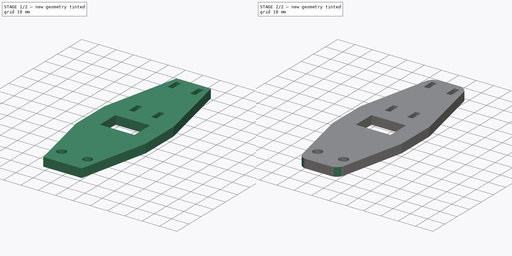
[diagram: build sequence overview — one tinted view per stage of 2, left to right]
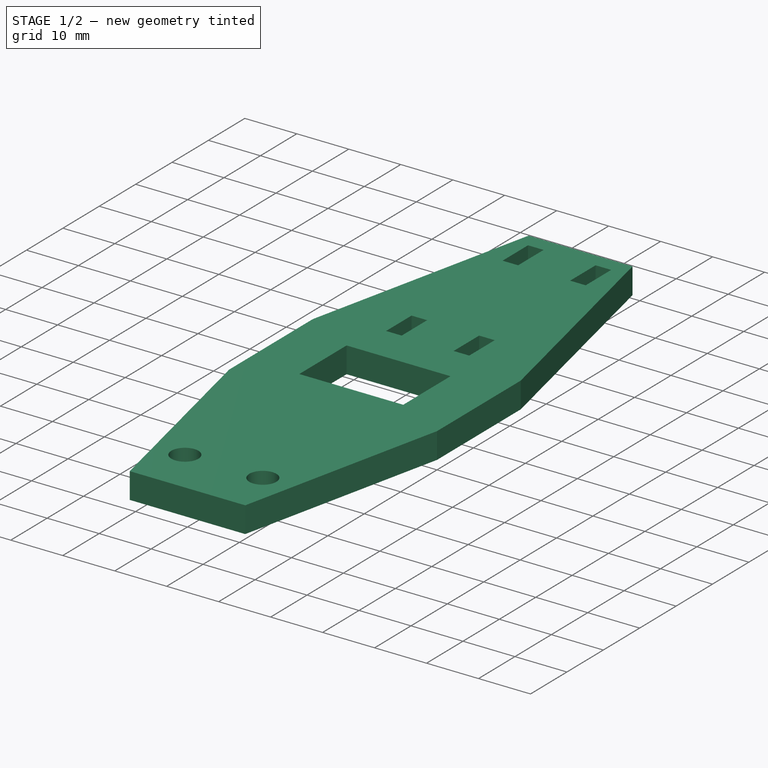
[diagram: stage 1 of 2 — iso view after this stage's code; geometry added in this stage tinted green]
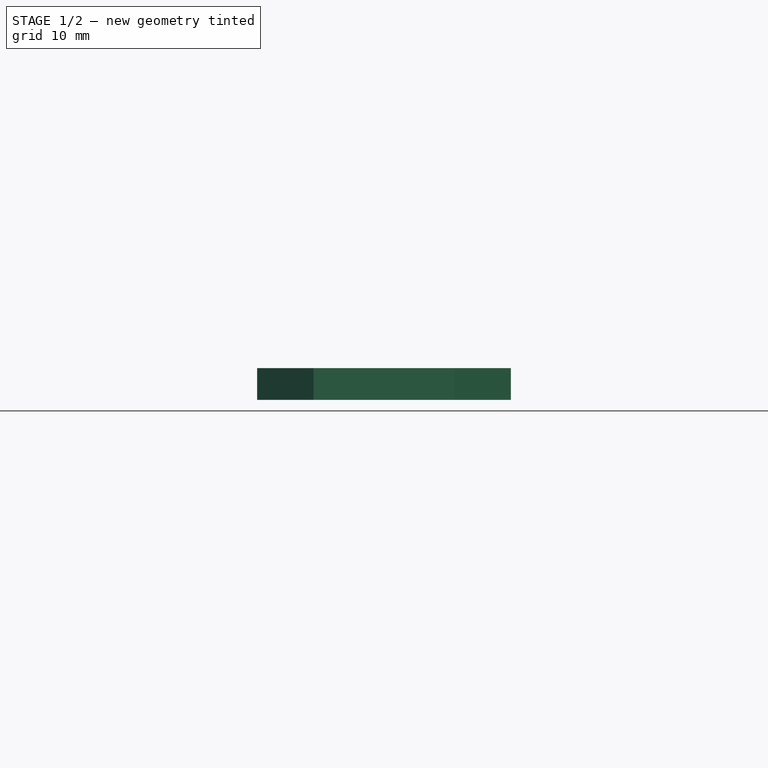
[diagram: stage 1 of 2 — front view after this stage's code; geometry added in this stage tinted green]
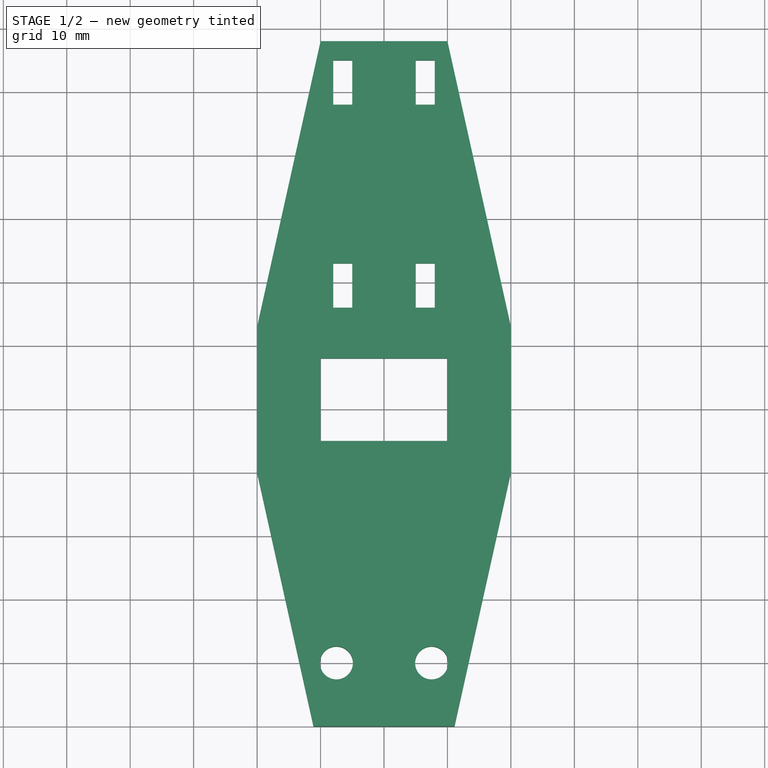
[diagram: stage 1 of 2 — top view after this stage's code; geometry added in this stage tinted green]
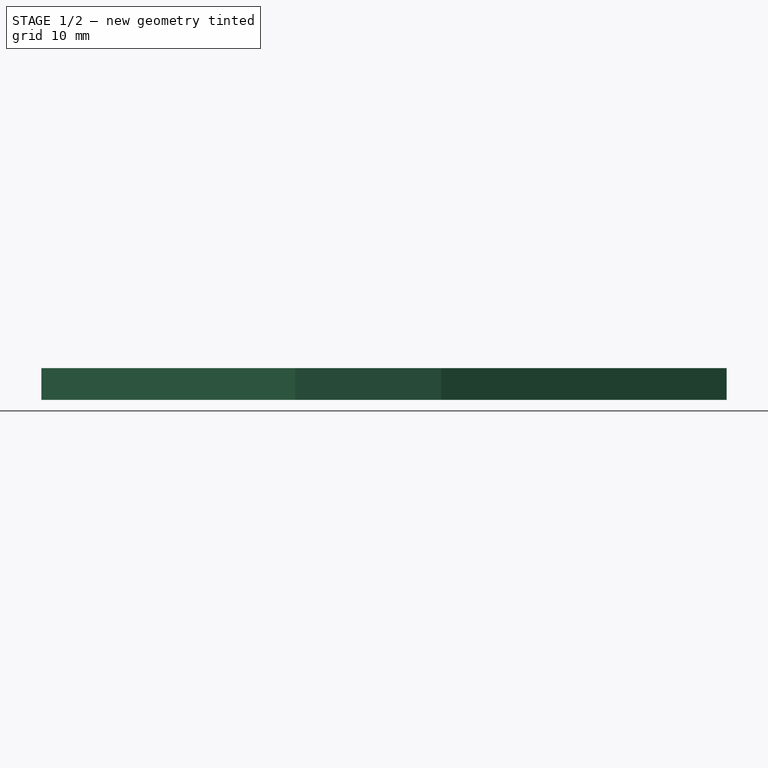
[diagram: stage 1 of 2 — right view after this stage's code; geometry added in this stage tinted green]
FCSTD DOCUMENT  (FreeCAD 0.19R24366 (Git))
Label: fixed-x-motor-cable-guide
License: All rights reserved
LicenseURL: http://en.wikipedia.org/wiki/All_rights_reserved
objects: Sketcher::SketchObject×1, PartDesign::Pad×1, PartDesign::Fillet×1, PartDesign::Plane×1, PartDesign::Body×1
note: 7 computed .brp shape members not serialized (recipe doc carries the construction recipe); baked Part::Feature solids carry a one-line shape summary decoded from their .brp

FEATURE [Sketcher::SketchObject] Sketch
  FullyConstrained = true
  MapMode = 5
  Support = -> [XY_Plane]
  sketch-geometry (33):
    g0: LineSegment StartX=-11.111 StartY=0 StartZ=0 EndX=11.111 EndY=0 EndZ=0
    g1: LineSegment StartX=20 StartY=40 StartZ=0 EndX=20 EndY=63 EndZ=0
    g2: LineSegment StartX=20 StartY=63 StartZ=0 EndX=-20 EndY=63 EndZ=0
    g3: LineSegment StartX=-20 StartY=63 StartZ=0 EndX=-20 EndY=40 EndZ=0
    g4: LineSegment StartX=-10 StartY=108 StartZ=0 EndX=10 EndY=108 EndZ=0
    g5: LineSegment StartX=-10 StartY=108 StartZ=0 EndX=-20 EndY=63 EndZ=0
    g6: LineSegment StartX=10 StartY=108 StartZ=0 EndX=20 EndY=63 EndZ=0
    g7: Circle CenterX=7.5 CenterY=10 CenterZ=0 NormalX=0 NormalY=0 NormalZ=1 AngleXU=0 Radius=2.6
    g8: Circle CenterX=-7.5 CenterY=10 CenterZ=0 NormalX=0 NormalY=0 NormalZ=1 AngleXU=0 Radius=2.6
    g9: LineSegment StartX=-8 StartY=105 StartZ=0 EndX=-5 EndY=105 EndZ=0
    g10: LineSegment StartX=-5 StartY=105 StartZ=0 EndX=-5 EndY=98 EndZ=0
    g11: LineSegment StartX=-5 StartY=98 StartZ=0 EndX=-8 EndY=98 EndZ=0
    g12: LineSegment StartX=-8 StartY=98 StartZ=0 EndX=-8 EndY=105 EndZ=0
    g13: LineSegment StartX=5 StartY=105 StartZ=0 EndX=8 EndY=105 EndZ=0
    g14: LineSegment StartX=8 StartY=105 StartZ=0 EndX=8 EndY=98 EndZ=0
    g15: LineSegment StartX=8 StartY=98 StartZ=0 EndX=5 EndY=98 EndZ=0
    g16: LineSegment StartX=5 StartY=98 StartZ=0 EndX=5 EndY=105 EndZ=0
    g17: LineSegment StartX=-10 StartY=58 StartZ=0 EndX=10 EndY=58 EndZ=0
    g18: LineSegment StartX=10 StartY=58 StartZ=0 EndX=10 EndY=45 EndZ=0
    g19: LineSegment StartX=10 StartY=45 StartZ=0 EndX=-10 EndY=45 EndZ=0
    g20: LineSegment StartX=-10 StartY=45 StartZ=0 EndX=-10 EndY=58 EndZ=0
    g21: LineSegment StartX=-8 StartY=73 StartZ=0 EndX=-5 EndY=73 EndZ=0
    g22: LineSegment StartX=-5 StartY=73 StartZ=0 EndX=-5 EndY=66 EndZ=0
    g23: LineSegment StartX=-5 StartY=66 StartZ=0 EndX=-8 EndY=66 EndZ=0
    g24: LineSegment StartX=-8 StartY=66 StartZ=0 EndX=-8 EndY=73 EndZ=0
    g25: LineSegment StartX=5 StartY=73 StartZ=0 EndX=8 EndY=73 EndZ=0
    g26: LineSegment StartX=8 StartY=73 StartZ=0 EndX=8 EndY=66 EndZ=0
    g27: LineSegment StartX=8 StartY=66 StartZ=0 EndX=5 EndY=66 EndZ=0
    g28: LineSegment StartX=5 StartY=66 StartZ=0 EndX=5 EndY=73 EndZ=0
    g29: LineSegment StartX=-20 StartY=40 StartZ=0 EndX=20 EndY=40 EndZ=0
    g30: LineSegment StartX=-20 StartY=40 StartZ=0 EndX=-11.111 EndY=0 EndZ=0
    g31: LineSegment StartX=11.111 StartY=0 StartZ=0 EndX=20 EndY=40 EndZ=0
    g32: LineSegment StartX=-11.111 StartY=0 StartZ=0 EndX=11.111 EndY=0 EndZ=0
  constraints (96):
    c: Coincident(g1,g2)
    c: Coincident(g2,g3)
    c: Horizontal(g0)
    c: Horizontal(g2)
    c: Vertical(g1)
    c: Vertical(g3)
    c: Horizontal(g4)
    c: DistanceX(g4,g4) = 20
    c: Coincident(g5,g4)
    c: Coincident(g5,g2)
    c: Coincident(g6,g4)
    c: Coincident(g6,g1)
    c: Diameter(g8) = 5.2
    c: Diameter(g7) = 5.2
    c: Coincident(g9,g10)
    c: Coincident(g10,g11)
    c: Coincident(g11,g12)
    c: Coincident(g12,g9)
    c: Horizontal(g9)
    c: Horizontal(g11)
    c: Vertical(g10)
    c: Vertical(g12)
    c: Coincident(g13,g14)
    c: Coincident(g14,g15)
    c: Coincident(g15,g16)
    c: Coincident(g16,g13)
    c: Horizontal(g13)
    c: Horizontal(g15)
    c: Vertical(g14)
    c: Vertical(g16)
    c: DistanceX(g11,g11) = 3
    c: DistanceX(g15,g15) = 3
    c: DistanceY(g12,g12) = 7
    c: DistanceY(g14,g14) = 7
    c: Coincident(g17,g18)
    c: Coincident(g18,g19)
    c: Coincident(g19,g20)
    c: Coincident(g20,g17)
    c: Horizontal(g17)
    c: Horizontal(g19)
    c: Vertical(g18)
    c: Vertical(g20)
    c: DistanceX(g19,g19) = 20
    c: DistanceX(g8,g7) = 15
    c: DistanceY(g8,g19) = 35
    c: DistanceY(g8,g17) = 48
    c: Coincident(g21,g22)
    c: Coincident(g22,g23)
    c: Coincident(g23,g24)
    c: Coincident(g24,g21)
    c: Horizontal(g21)
    c: Horizontal(g23)
    c: Vertical(g22)
    c: Vertical(g24)
    c: Coincident(g25,g26)
    c: Coincident(g26,g27)
    c: Coincident(g27,g28)
    c: Coincident(g28,g25)
    c: Horizontal(g25)
    c: Horizontal(g27)
    c: Vertical(g26)
    c: Vertical(g28)
    c: DistanceX(g23,g23) = 3
    c: DistanceX(g27,g27) = 3
    c: DistanceY(g22,g22) = 7
    c: DistanceY(g26,g26) = 7
    c: DistanceY(g17,g4) = 50
    c: DistanceY(g-1,g8) = 10
    c: DistanceY(g2,g21) = 10
    c: DistanceY(g1,g25) = 10
    c: DistanceX(g9,g13) = 10
    c: DistanceY(g13,g4) = 3
    c: DistanceY(g9,g4) = 3
    c: DistanceX(g17,g1) = 10
    c: DistanceX(g2,g4) = 10
    c: DistanceX(g21,g25) = 10
    c: DistanceX(g-1,g8) = 12.5
    c: DistanceX(g4,g9) = 2
    c: DistanceX(g2,g23) = 12
    c: Horizontal(g29)
    c: Coincident(g30,g29)
    c: Coincident(g31,g29)
    c: Equal(g31,g30)
    c: Angle(g5,g4) = 1.78947
    c: Angle(g0,g30) = 1.78947
    c: Coincident(g32,g30)
    c: Coincident(g32,g31)
    c: DistanceY(g17,g1) = 5
    c: DistanceY(g29,g18) = 5
    c: Coincident(g3,g29)
    c: Coincident(g1,g29)
    c: Coincident(g0,g31)
    c: Coincident(g0,g30)
    c: Equal(g6,g5)
    c: Symmetric(g0,g0,g-1)
    c: Symmetric(g8,g7,g-2)
FEATURE [PartDesign::Pad] Pad
  Direction = (1,1,1)
  Length = 5
  Length2 = 100
  Profile = -> Sketch
  Refine = true
  Type = 0
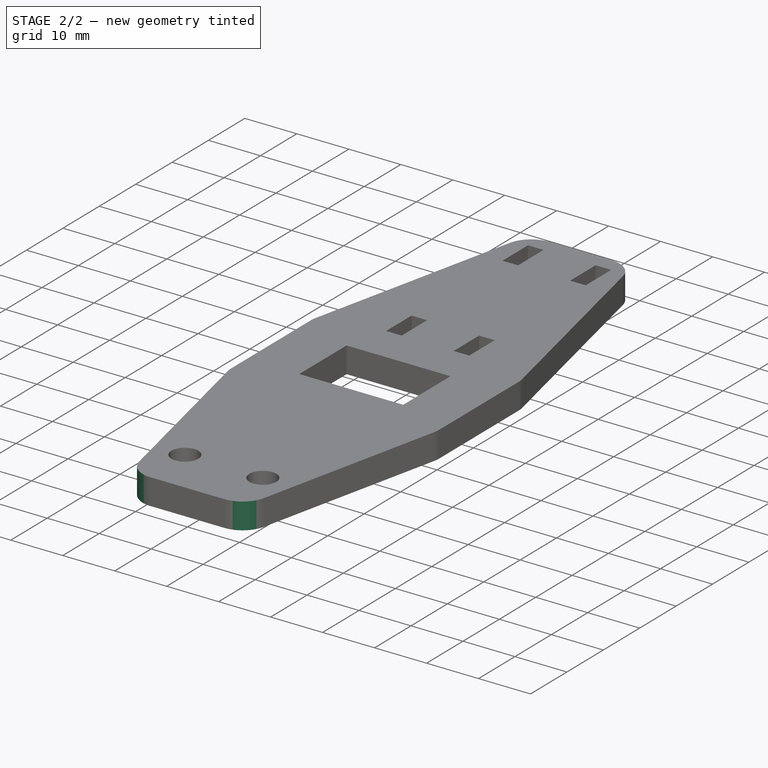
[diagram: stage 2 of 2 — iso view after this stage's code; geometry added in this stage tinted green]
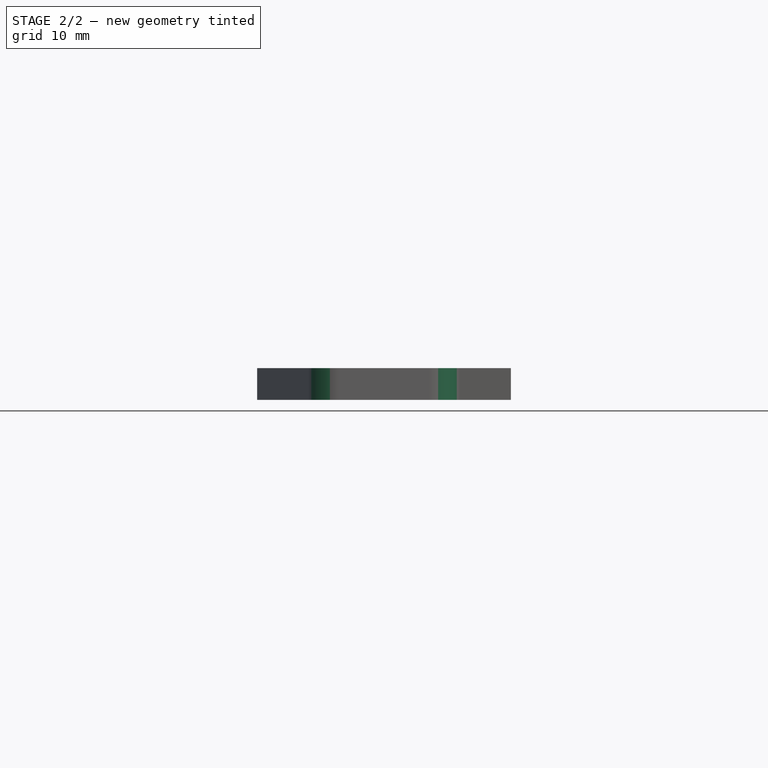
[diagram: stage 2 of 2 — front view after this stage's code; geometry added in this stage tinted green]
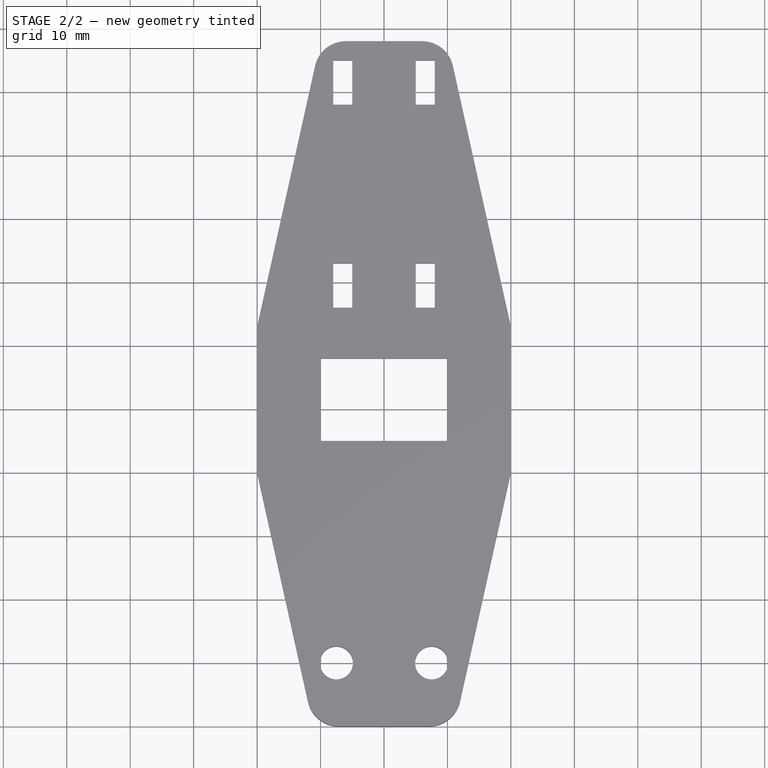
[diagram: stage 2 of 2 — top view after this stage's code; geometry added in this stage tinted green]
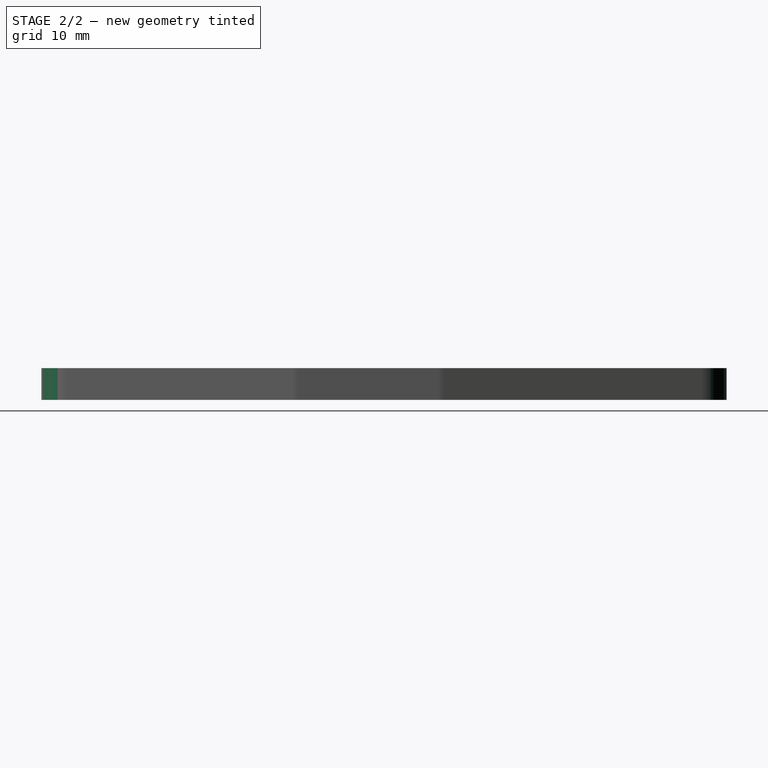
[diagram: stage 2 of 2 — right view after this stage's code; geometry added in this stage tinted green]
FEATURE [PartDesign::Fillet] Fillet
  Base = -> Pad [Edge20,Edge1,Edge17,Edge14,Edge11,Edge8,Edge5,Edge2]
  BaseFeature = -> Pad
  Radius = 5
  SupportTransform = false
FEATURE [PartDesign::Plane] DatumPlane  label="PrintPlane"
  Length = 60
  MapMode = 5
  Placement = pos=(0,0,0) rot=(1,0,0;3.14159rad)
  ResizeMode = 0
  Support = -> [Fillet]
  Width = 60
FEATURE [PartDesign::Body] Body
  Group = -> [Sketch,Pad,Fillet,DatumPlane]
  Origin = -> Origin
  Tip = -> Fillet
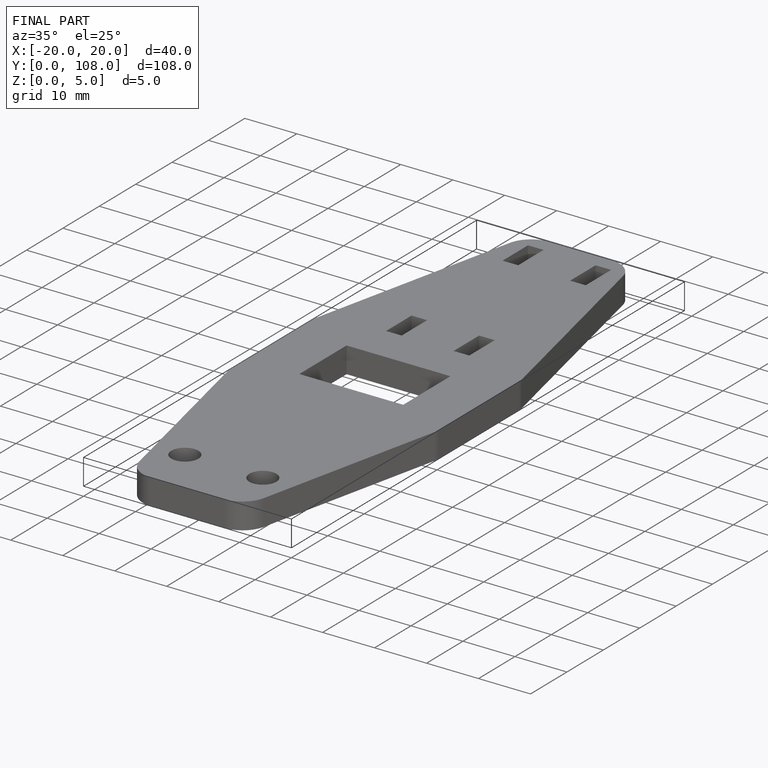
[diagram: finished part — iso view with bounding-box wireframe]
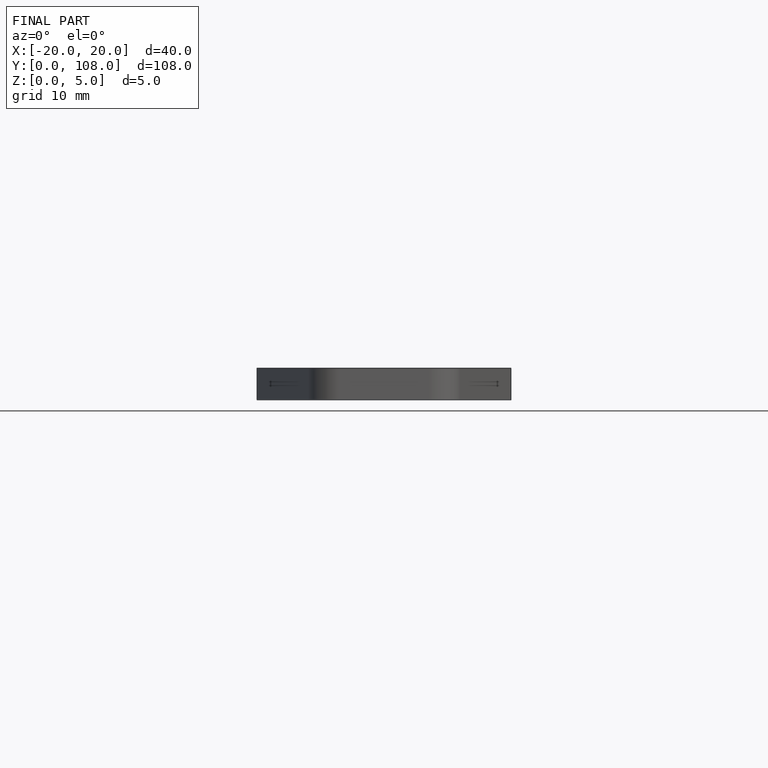
[diagram: finished part — front view with bounding-box wireframe]
